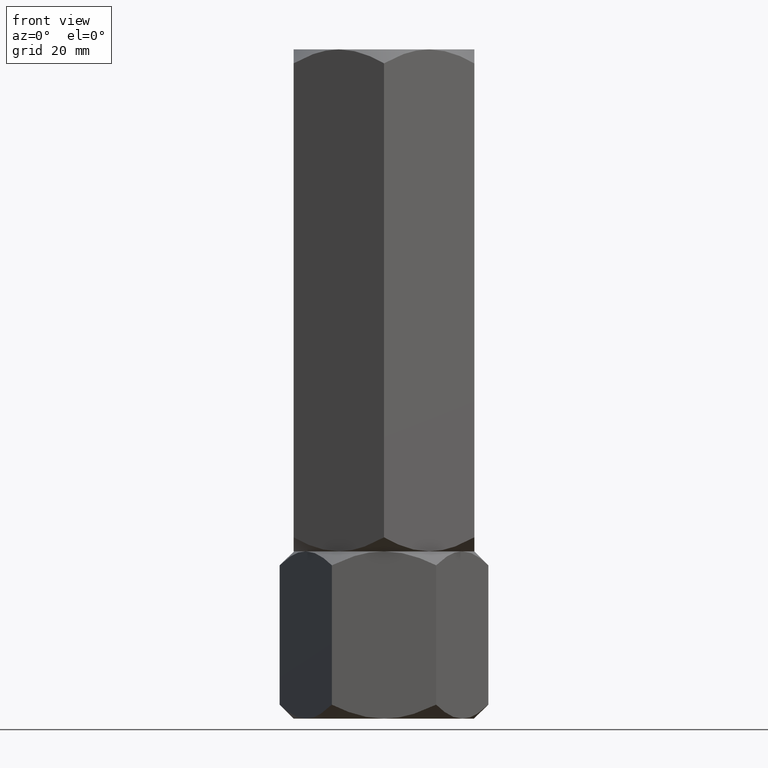
[diagram: clean part render]
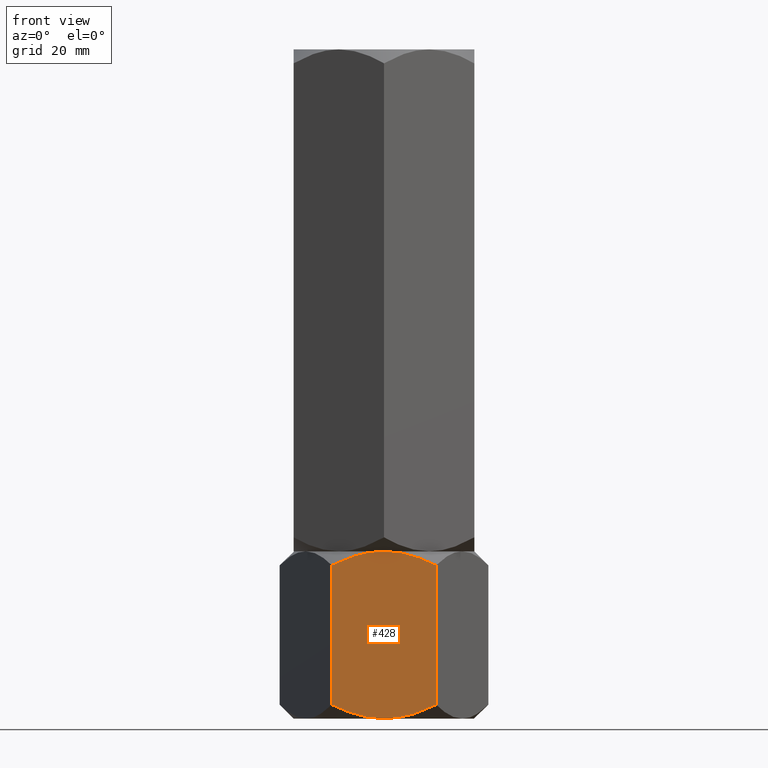
[diagram: same view with one face highlighted and labeled with its STEP entity id]
A machine part, front view. The second image highlights one B-rep face of the part: STEP entity #428.
In plain terms, the highlighted planar face has unit normal (-0, 1, 0).
Its self-contained STEP definition (entity closure, byte-faithful):
#24 = LINE ( 'NONE', #1939, #1886 ) ;
#49 = CARTESIAN_POINT ( 'NONE',  ( 10.39230484541326227, -18.00000000000000000, 30.54872364250678274 ) ) ;
#65 = EDGE_CURVE ( 'NONE', #1198, #485, #1347, .T. ) ;
#75 = CARTESIAN_POINT ( 'NONE',  ( -2.259904121284822764, -18.00000000000000000, 33.19747394958513098 ) ) ;
#90 = VERTEX_POINT ( 'NONE', #540 ) ;
#108 = CARTESIAN_POINT ( 'NONE',  ( 6.223364658448750752, -18.00000000000000000, 1.027362707364319450 ) ) ;
#109 = CARTESIAN_POINT ( 'NONE',  ( -10.39230484541326227, -18.00000000000000355, 2.784609690826521877 ) ) ;
#116 = CARTESIAN_POINT ( 'NONE',  ( 4.490362039994827192, -18.00000000000000711, 0.5330411745022600734 ) ) ;
#137 = EDGE_LOOP ( 'NONE', ( #1562, #665, #474, #359, #1096, #138 ) ) ;
#138 = ORIENTED_EDGE ( 'NONE', *, *, #65, .F. ) ;
#201 = CARTESIAN_POINT ( 'NONE',  ( 0.9026633666619900964, -18.00000000000000355, 33.33333333333330017 ) ) ;
#209 = CARTESIAN_POINT ( 'NONE',  ( 3.137971139320007818, -18.00000000000000711, 33.06718255962365305 ) ) ;
#253 = CARTESIAN_POINT ( 'NONE',  ( -4.469866588357224835, -18.00000000000000000, 0.5416378219639074176 ) ) ;
#313 = EDGE_CURVE ( 'NONE', #1612, #840, #333, .T. ) ;
#324 = EDGE_CURVE ( 'NONE', #485, #1612, #24, .T. ) ;
#330 = FACE_OUTER_BOUND ( 'NONE', #137, .T. ) ;
#333 = B_SPLINE_CURVE_WITH_KNOTS ( 'NONE', 3,
 ( #1870, #475, #1095, #1531, #108, #116, #730, #580, #738, #1377, #2017, #588 ),
 .UNSPECIFIED., .F., .F.,
 ( 4, 2, 2, 2, 2, 4 ),
 ( 0.05087049060338695583, 0.05355718337380667438, 0.05624387614422638598, 0.05893056891464609759, 0.06027391529985595686, 0.06161726168506581613 ),
 .UNSPECIFIED. ) ;
#359 = ORIENTED_EDGE ( 'NONE', *, *, #313, .F. ) ;
#411 = EDGE_CURVE ( 'NONE', #90, #770, #1579, .T. ) ;
#415 = CARTESIAN_POINT ( 'NONE',  ( -4.913571642337144496, -18.00000000000000711, 0.6538437536460127708 ) ) ;
#428 = ADVANCED_FACE ( 'NONE', ( #330 ), #1275, .F. ) ;
#474 = ORIENTED_EDGE ( 'NONE', *, *, #1534, .F. ) ;
#475 = CARTESIAN_POINT ( 'NONE',  ( 9.584903723681010845, -18.00000000000000355, 2.380909129960393056 ) ) ;
#485 = VERTEX_POINT ( 'NONE', #1817 ) ;
#487 = EDGE_CURVE ( 'NONE', #90, #1198, #1159, .T. ) ;
#488 = CARTESIAN_POINT ( 'NONE',  ( 3.004629197474318851E-15, -18.00000000000000000, 33.33333333333330017 ) ) ;
#498 = CARTESIAN_POINT ( 'NONE',  ( 7.110040999954845731, -18.00000000000000711, 32.05339839988550210 ) ) ;
#520 = CARTESIAN_POINT ( 'NONE',  ( 8.776755605963904472, -18.00000000000000355, 31.35649826223145453 ) ) ;
#540 = CARTESIAN_POINT ( 'NONE',  ( -10.39230484541326405, -18.00000000000000355, 30.54872364250677563 ) ) ;
#573 = CARTESIAN_POINT ( 'NONE',  ( -1.804565745311152325, -18.00000000000000355, 33.24872234649104286 ) ) ;
#580 = CARTESIAN_POINT ( 'NONE',  ( 2.259904121284833423, -18.00000000000000711, 0.1358593837481705258 ) ) ;
#588 = CARTESIAN_POINT ( 'NONE',  ( 3.004629197474318851E-15, -18.00000000000000000, 0.000000000000000000 ) ) ;
#621 = VECTOR ( 'NONE', #1420, 1000.000000000000000 ) ;
#632 = CARTESIAN_POINT ( 'NONE',  ( 4.469866588357230164, -18.00000000000000711, 32.79169551136939731 ) ) ;
#642 = CARTESIAN_POINT ( 'NONE',  ( 3.582737890600638409, -18.00000000000000000, 32.98534607053208845 ) ) ;
#665 = ORIENTED_EDGE ( 'NONE', *, *, #411, .T. ) ;
#730 = CARTESIAN_POINT ( 'NONE',  ( 3.609079520572080479, -18.00000000000000000, 0.3366946526511047089 ) ) ;
#738 = CARTESIAN_POINT ( 'NONE',  ( 1.804565745311155212, -18.00000000000000000, 0.08461098684226332767 ) ) ;
#770 = VERTEX_POINT ( 'NONE', #1092 ) ;
#780 = CARTESIAN_POINT ( 'NONE',  ( -10.39230484541326227, -18.00000000000000355, 33.33333333333330017 ) ) ;
#840 = VERTEX_POINT ( 'NONE', #1951 ) ;
#868 = CARTESIAN_POINT ( 'NONE',  ( -3.609079520572072042, -18.00000000000000355, 32.99663868068219585 ) ) ;
#896 = CARTESIAN_POINT ( 'NONE',  ( -8.776755605963909801, -18.00000000000000711, 1.976835071101847197 ) ) ;
#937 = B_SPLINE_CURVE_WITH_KNOTS ( 'NONE', 3,
 ( #1053, #1678, #1394, #1220, #1841, #253, #415, #2032, #896, #109 ),
 .UNSPECIFIED., .F., .F.,
 ( 4, 2, 2, 2, 4 ),
 ( 0.06161726168506581613, 0.06431523531013789985, 0.06566422212267393477, 0.06701320893520996969, 0.07240915618535412324 ),
 .UNSPECIFIED. ) ;
#959 = DIRECTION ( 'NONE',  ( -1.669238443041288415E-16, 1.000000000000000000, 0.000000000000000000 ) ) ;
#999 = CARTESIAN_POINT ( 'NONE',  ( -4.490362039994823640, -18.00000000000000711, 32.80029215883103433 ) ) ;
#1053 = CARTESIAN_POINT ( 'NONE',  ( 3.004629197474318851E-15, -18.00000000000000000, 0.000000000000000000 ) ) ;
#1092 = CARTESIAN_POINT ( 'NONE',  ( -10.39230484541326227, -18.00000000000000355, 2.784609690826521877 ) ) ;
#1095 = CARTESIAN_POINT ( 'NONE',  ( 8.755178905241947973, -18.00000000000000000, 2.001545844721454692 ) ) ;
#1096 = ORIENTED_EDGE ( 'NONE', *, *, #324, .F. ) ;
#1106 = DIRECTION ( 'NONE',  ( -0.000000000000000000, -0.000000000000000000, -1.000000000000000000 ) ) ;
#1116 = CARTESIAN_POINT ( 'NONE',  ( -10.39230484541326227, -18.00000000000000355, 33.33333333333330017 ) ) ;
#1159 = B_SPLINE_CURVE_WITH_KNOTS ( 'NONE', 3,
 ( #1652, #1173, #1965, #1798, #1809, #999, #868, #75, #573, #1515, #1315, #1985 ),
 .UNSPECIFIED., .F., .F.,
 ( 4, 2, 2, 2, 2, 4 ),
 ( 0.05087049060338694195, 0.05355718337380666050, 0.05624387614422637210, 0.05893056891464609065, 0.06027391529985594992, 0.06161726168506580920 ),
 .UNSPECIFIED. ) ;
#1173 = CARTESIAN_POINT ( 'NONE',  ( -9.584903723681017951, -18.00000000000000711, 30.95242420337289602 ) ) ;
#1198 = VERTEX_POINT ( 'NONE', #1396 ) ;
#1220 = CARTESIAN_POINT ( 'NONE',  ( -3.137971139320000713, -18.00000000000000355, 0.2661507737096506787 ) ) ;
#1275 = PLANE ( 'NONE',  #1421 ) ;
#1278 = CARTESIAN_POINT ( 'NONE',  ( 4.913571642337134726, -18.00000000000000355, 32.67948957968729218 ) ) ;
#1315 = CARTESIAN_POINT ( 'NONE',  ( -0.4494445606874118426, -18.00000000000000355, 33.33333333333330017 ) ) ;
#1347 = B_SPLINE_CURVE_WITH_KNOTS ( 'NONE', 3,
 ( #488, #201, #1948, #209, #642, #632, #1278, #498, #520, #49 ),
 .UNSPECIFIED., .F., .F.,
 ( 4, 2, 2, 2, 4 ),
 ( 0.06161726168506580920, 0.06431523531013788597, 0.06566422212267392089, 0.06701320893520995581, 0.07240915618535410936 ),
 .UNSPECIFIED. ) ;
#1377 = CARTESIAN_POINT ( 'NONE',  ( 0.9002413815126293350, -18.00000000000000000, 0.01685687241959744898 ) ) ;
#1394 = CARTESIAN_POINT ( 'NONE',  ( -1.799853003699874110, -18.00000000000000355, 0.06823388440831962276 ) ) ;
#1396 = CARTESIAN_POINT ( 'NONE',  ( 3.004629197474318851E-15, -18.00000000000000000, 33.33333333333330017 ) ) ;
#1420 = DIRECTION ( 'NONE',  ( -0.000000000000000000, -0.000000000000000000, -1.000000000000000000 ) ) ;
#1421 = AXIS2_PLACEMENT_3D ( 'NONE', #1116, #959, #1604 ) ;
#1515 = CARTESIAN_POINT ( 'NONE',  ( -0.9002413815126270036, -18.00000000000001066, 33.31647646091371229 ) ) ;
#1531 = CARTESIAN_POINT ( 'NONE',  ( 7.075106353536194881, -18.00000000000000000, 1.325263476329341605 ) ) ;
#1534 = EDGE_CURVE ( 'NONE', #840, #770, #937, .T. ) ;
#1562 = ORIENTED_EDGE ( 'NONE', *, *, #487, .F. ) ;
#1579 = LINE ( 'NONE', #780, #621 ) ;
#1604 = DIRECTION ( 'NONE',  ( -1.000000000000000000, -1.669238443041288415E-16, 0.000000000000000000 ) ) ;
#1612 = VERTEX_POINT ( 'NONE', #1763 ) ;
#1652 = CARTESIAN_POINT ( 'NONE',  ( -10.39230484541326405, -18.00000000000000355, 30.54872364250677563 ) ) ;
#1678 = CARTESIAN_POINT ( 'NONE',  ( -0.9026633666619900964, -18.00000000000000355, 1.879283765641541676E-15 ) ) ;
#1763 = CARTESIAN_POINT ( 'NONE',  ( 10.39230484541326227, -18.00000000000000000, 2.784609690826516104 ) ) ;
#1798 = CARTESIAN_POINT ( 'NONE',  ( -7.075106353536198434, -17.99999999999999645, 32.00806985700393170 ) ) ;
#1809 = CARTESIAN_POINT ( 'NONE',  ( -6.223364658448748976, -18.00000000000000000, 32.30597062596896052 ) ) ;
#1817 = CARTESIAN_POINT ( 'NONE',  ( 10.39230484541326227, -18.00000000000000000, 30.54872364250678274 ) ) ;
#1841 = CARTESIAN_POINT ( 'NONE',  ( -3.582737890600630859, -18.00000000000000711, 0.3479872628012171676 ) ) ;
#1870 = CARTESIAN_POINT ( 'NONE',  ( 10.39230484541326227, -18.00000000000000000, 2.784609690826516104 ) ) ;
#1886 = VECTOR ( 'NONE', #1106, 1000.000000000000000 ) ;
#1939 = CARTESIAN_POINT ( 'NONE',  ( 10.39230484541326227, -18.00000000000000000, 33.33333333333330017 ) ) ;
#1948 = CARTESIAN_POINT ( 'NONE',  ( 1.799853003699880105, -17.99999999999999645, 33.26509944892497828 ) ) ;
#1951 = CARTESIAN_POINT ( 'NONE',  ( 3.004629197474318851E-15, -18.00000000000000000, 0.000000000000000000 ) ) ;
#1965 = CARTESIAN_POINT ( 'NONE',  ( -8.755178905241955079, -18.00000000000000355, 31.33178748861182328 ) ) ;
#1985 = CARTESIAN_POINT ( 'NONE',  ( 3.004629197474318851E-15, -18.00000000000000000, 33.33333333333330017 ) ) ;
#2017 = CARTESIAN_POINT ( 'NONE',  ( 0.4494445606874124532, -18.00000000000000711, 1.665266774301954664E-15 ) ) ;
#2032 = CARTESIAN_POINT ( 'NONE',  ( -7.110040999954856389, -18.00000000000000355, 1.279934933447800072 ) ) ;